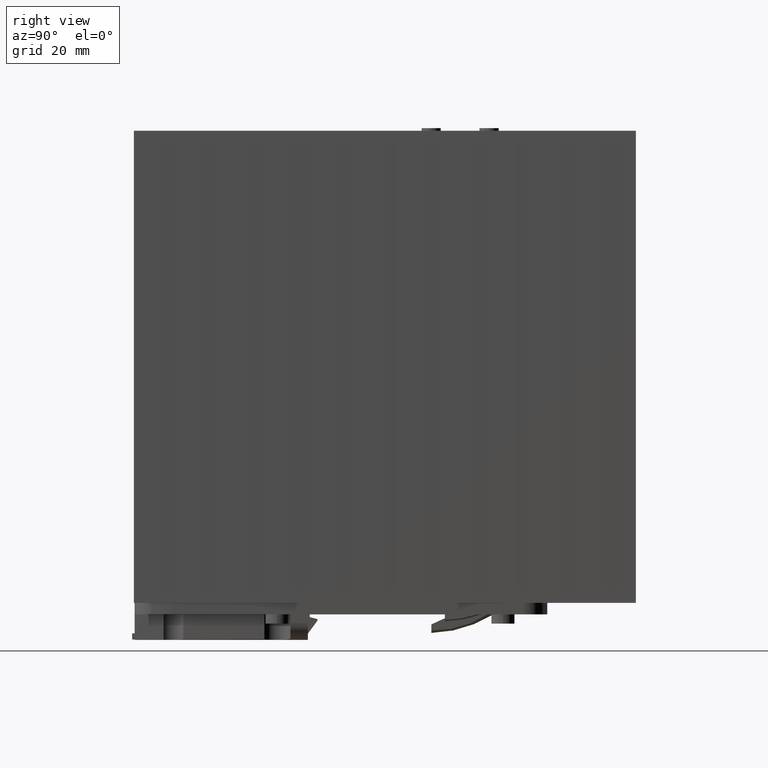
[diagram: clean part render]
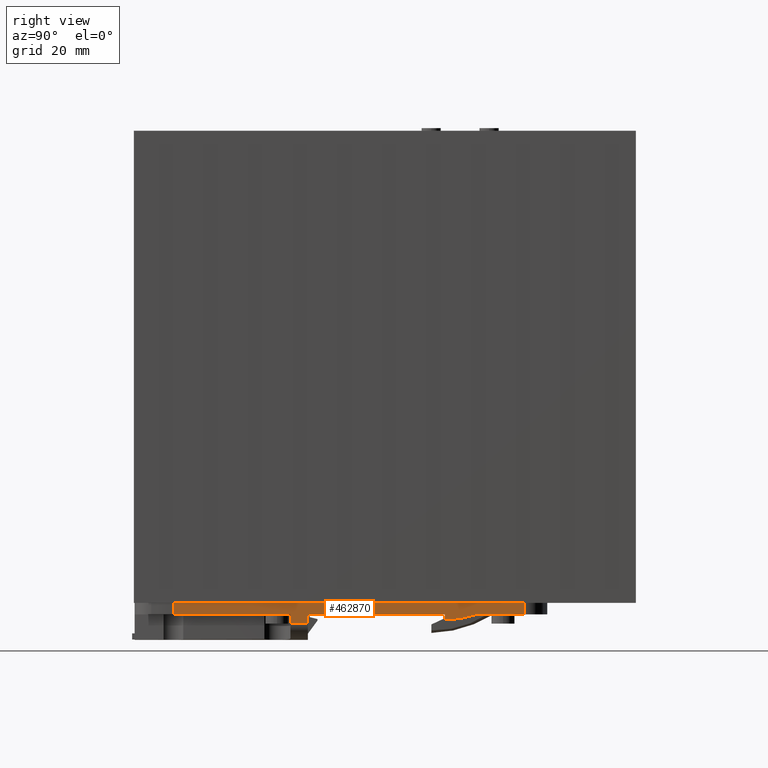
[diagram: same view with one face highlighted and labeled with its STEP entity id]
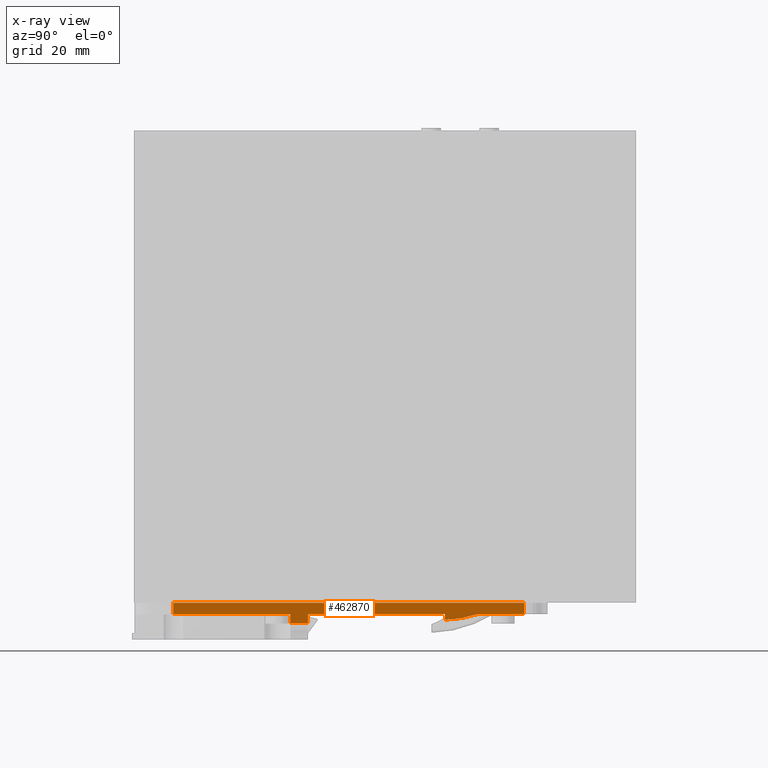
[diagram: x-ray of the same camera — body ghosted, the highlighted face saturated]
A machine part, right view. The second image highlights one B-rep face of the part: STEP entity #462870.
The next image is the same camera in x-ray: the body ghosted, the highlighted face saturated — about 0% of this face is hidden behind the body in this view.
In plain terms, the highlighted planar face has unit normal (1, -0, 0).
Its self-contained STEP definition (entity closure, byte-faithful):
#274210=CARTESIAN_POINT('',(33.000499715995,101.073749299711,
9.59999999999972));
#274220=VERTEX_POINT('',#274210);
#274250=CARTESIAN_POINT('',(33.0009956153419,65.,9.59999999999972));
#274260=DIRECTION('',(-1.37468202358229E-5,0.999999999905513,0.));
#274270=VECTOR('',#274260,1.);
#274280=LINE('',#274250,#274270);
#274290=CARTESIAN_POINT('',(33.0017489558362,10.1989273713365,
9.59999999999972));
#274300=VERTEX_POINT('',#274290);
#274310=EDGE_CURVE('',#274300,#274220,#274280,.T.);
#461780=CARTESIAN_POINT('',(33.0017801868841,7.92705304312717,
4.26218976403106));
#461790=DIRECTION('',(0.999999999905513,1.37468202358229E-5,
5.47171506835765E-60));
#461800=DIRECTION('',(-1.37468202358229E-5,0.999999999905513,
-3.26265223505973E-55));
#461810=AXIS2_PLACEMENT_3D('',#461780,#461790,#461800);
#461820=PLANE('',#461810);
#461830=CARTESIAN_POINT('',(33.0006696575565,88.711504177131,
6.59999999999972));
#461840=CARTESIAN_POINT('',(33.0006719124714,88.5474724289199,
6.54499876435233));
#461850=CARTESIAN_POINT('',(33.0006764378007,88.2182814473332,
6.43830317759604));
#461860=CARTESIAN_POINT('',(33.000683269252,87.7213337025253,
6.28828770391952));
#461870=CARTESIAN_POINT('',(33.0006901415978,87.2214111258961,
6.14837927027273));
#461880=CARTESIAN_POINT('',(33.0006970526605,86.7186721235517,
6.01863239606891));
#461890=CARTESIAN_POINT('',(33.0007039992523,86.2133485834282,
5.89910511178914));
#461900=CARTESIAN_POINT('',(33.0007109784218,85.7056552169942,
5.78983234790212));
#461910=CARTESIAN_POINT('',(33.0007179864518,85.1958624130451,
5.69084038128574));
#461920=CARTESIAN_POINT('',(33.000725020654,84.6841657369521,
5.6021215680328));
#461930=CARTESIAN_POINT('',(33.00073207813,84.1707760324298,
5.52365607701799));
#461940=CARTESIAN_POINT('',(33.0007391557873,83.6559182571558,
5.45540975513624));
#461950=CARTESIAN_POINT('',(33.0007462504263,83.1398251600656,
5.39733233342645));
#461960=CARTESIAN_POINT('',(33.0007533580194,82.6227897358548,
5.34936275109381));
#461970=CARTESIAN_POINT('',(33.0007604758497,82.105009605525,
5.31141202192599));
#461980=CARTESIAN_POINT('',(33.0007676011204,81.58668823754,
5.28337830489336));
#461990=CARTESIAN_POINT('',(33.0007735438335,81.1543909535517,
5.26818496728812));
#462000=CARTESIAN_POINT('',(33.0007774079118,80.8733020681821,
5.26224253117789));
#462010=CARTESIAN_POINT('',(33.0007791915005,80.7435565212837,
5.26025081898685));
#462020=CARTESIAN_POINT('',(33.000779860371,80.6949001409035,
5.25961678311948));
#462030=CARTESIAN_POINT('',(33.0007803062921,80.6624620199141,
5.25924029099116));
#462040=CARTESIAN_POINT('',(33.0007805292545,80.6462428184632,
5.25906260672673));
#462050=CARTESIAN_POINT('',(33.0007807522176,80.6300235703756,
5.25888922738471));
#462060=CARTESIAN_POINT('',(33.0007811981435,80.5975850915504,
5.25854040628514));
#462070=CARTESIAN_POINT('',(33.0007815697485,80.5705530205046,
5.25825017122511));
#462080=CARTESIAN_POINT('',(33.0007818670326,80.5489273646676,
5.25801783356707));
#462090=B_SPLINE_CURVE_WITH_KNOTS('',3,(#461830,#461840,#461850,#461860,
#461870,#461880,#461890,#461900,#461910,#461920,#461930,#461940,#461950,
#461960,#461970,#461980,#461990,#462000,#462010,#462020,#462030,#462040,
#462050,#462060,#462070,#462080),.UNSPECIFIED.,.F.,.F.,(4,1,1,1,1,1,1,1,
1,1,1,1,1,1,1,1,1,1,1,1,1,1,1,4),(0.,0.062480746009594,0.124964175441867
,0.187457061089911,0.249949239367105,0.312462027325257,0.374975010131072
,0.437486196039272,0.499997342980674,0.562516154063056,0.625034895044102
,0.687549791856975,0.750064972365341,0.812549759461867,0.875033471966575
,0.93751666189869,0.968758235405151,0.976568674753337,0.984379105555254,
0.986331716950949,0.988284328452784,0.99023694015508,0.992189551914222,
1.),.UNSPECIFIED.);
#462100=CARTESIAN_POINT('',(33.0006696575565,88.711504177131,
6.59999999999972));
#462110=VERTEX_POINT('',#462100);
#462120=CARTESIAN_POINT('',(33.0007818670326,80.5489273646893,
5.25801783356729));
#462130=VERTEX_POINT('',#462120);
#462140=EDGE_CURVE('',#462110,#462130,#462090,.T.);
#462150=ORIENTED_EDGE('',*,*,#462140,.F.);
#462160=CARTESIAN_POINT('',(33.0007818670326,80.5489273646893,
9.5999999999909));
#462170=DIRECTION('',(9.95682444457783E-60,-3.26265223399926E-55,-1.));
#462180=VECTOR('',#462170,1.);
#462190=LINE('',#462160,#462180);
#462200=CARTESIAN_POINT('',(33.0007818670326,80.5489273646893,
6.59999999999972));
#462210=VERTEX_POINT('',#462200);
#462220=EDGE_CURVE('',#462210,#462130,#462190,.T.);
#462230=ORIENTED_EDGE('',*,*,#462220,.T.);
#462240=CARTESIAN_POINT('',(33.0001130694827,129.2,6.59999999999972));
#462250=DIRECTION('',(1.37468202358229E-5,-0.999999999905513,
3.26265223505973E-55));
#462260=VECTOR('',#462250,1.);
#462270=LINE('',#462240,#462260);
#462280=CARTESIAN_POINT('',(33.0012698791509,45.0489273680436,
6.59999999999972));
#462290=VERTEX_POINT('',#462280);
#462300=EDGE_CURVE('',#462210,#462290,#462270,.T.);
#462310=ORIENTED_EDGE('',*,*,#462300,.F.);
#462320=CARTESIAN_POINT('',(33.0012698791509,45.0489273680436,
9.5999999999909));
#462330=DIRECTION('',(9.95682444457783E-60,-3.26265223399926E-55,-1.));
#462340=VECTOR('',#462330,1.);
#462350=LINE('',#462320,#462340);
#462360=CARTESIAN_POINT('',(33.0012698791509,45.0489273680436,
4.39238394539596));
#462370=VERTEX_POINT('',#462360);
#462380=EDGE_CURVE('',#462290,#462370,#462350,.T.);
#462390=ORIENTED_EDGE('',*,*,#462380,.F.);
#462400=CARTESIAN_POINT('',(33.0012698791509,45.0489273680436,
4.39238394539596));
#462410=DIRECTION('',(1.37468202360145E-5,-0.999999999905512,
3.26265223505973E-55));
#462420=VECTOR('',#462410,1.);
#462430=LINE('',#462400,#462420);
#462440=CARTESIAN_POINT('',(33.001331739842,40.5489273684688,
4.39238394539596));
#462450=VERTEX_POINT('',#462440);
#462460=EDGE_CURVE('',#462370,#462450,#462430,.T.);
#462470=ORIENTED_EDGE('',*,*,#462460,.F.);
#462480=CARTESIAN_POINT('',(33.001331739842,40.5489273684688,
9.5999999999909));
#462490=DIRECTION('',(-9.95682444457783E-60,3.26265223399926E-55,1.));
#462500=VECTOR('',#462490,1.);
#462510=LINE('',#462480,#462500);
#462520=CARTESIAN_POINT('',(33.001331739842,40.5489273684688,
6.59999999999972));
#462530=VERTEX_POINT('',#462520);
#462540=EDGE_CURVE('',#462450,#462530,#462510,.T.);
#462550=ORIENTED_EDGE('',*,*,#462540,.F.);
#462560=CARTESIAN_POINT('',(33.0001130694827,129.2,6.59999999999972));
#462570=DIRECTION('',(1.37468202358229E-5,-0.999999999905513,
3.26265223505973E-55));
#462580=VECTOR('',#462570,1.);
#462590=LINE('',#462560,#462580);
#462600=CARTESIAN_POINT('',(33.0017489558362,10.1989273713365,
6.59999999999972));
#462610=VERTEX_POINT('',#462600);
#462620=EDGE_CURVE('',#462530,#462610,#462590,.T.);
#462630=ORIENTED_EDGE('',*,*,#462620,.F.);
#462640=CARTESIAN_POINT('',(33.0017489558362,10.1989273713365,
9.59999999999221));
#462650=DIRECTION('',(9.95682444457783E-60,-3.26265223399926E-55,-1.));
#462660=VECTOR('',#462650,1.);
#462670=LINE('',#462640,#462660);
#462680=EDGE_CURVE('',#274300,#462610,#462670,.T.);
#462690=ORIENTED_EDGE('',*,*,#462680,.T.);
#462700=ORIENTED_EDGE('',*,*,#274310,.F.);
#462710=CARTESIAN_POINT('',(33.000499715995,101.073749299711,
9.59999999999221));
#462720=DIRECTION('',(9.95682444457783E-60,-3.26265223399926E-55,-1.));
#462730=VECTOR('',#462720,1.);
#462740=LINE('',#462710,#462730);
#462750=CARTESIAN_POINT('',(33.000499715995,101.073749299711,
6.59999999999972));
#462760=VERTEX_POINT('',#462750);
#462770=EDGE_CURVE('',#274220,#462760,#462740,.T.);
#462780=ORIENTED_EDGE('',*,*,#462770,.F.);
#462790=CARTESIAN_POINT('',(33.0001130694827,129.2,6.59999999999972));
#462800=DIRECTION('',(1.37468202358229E-5,-0.999999999905513,
3.26265223505973E-55));
#462810=VECTOR('',#462800,1.);
#462820=LINE('',#462790,#462810);
#462830=EDGE_CURVE('',#462760,#462110,#462820,.T.);
#462840=ORIENTED_EDGE('',*,*,#462830,.F.);
#462850=EDGE_LOOP('',(#462840,#462780,#462700,#462690,#462630,#462550,
#462470,#462390,#462310,#462230,#462150));
#462860=FACE_OUTER_BOUND('',#462850,.T.);
#462870=ADVANCED_FACE('',(#462860),#461820,.T.);